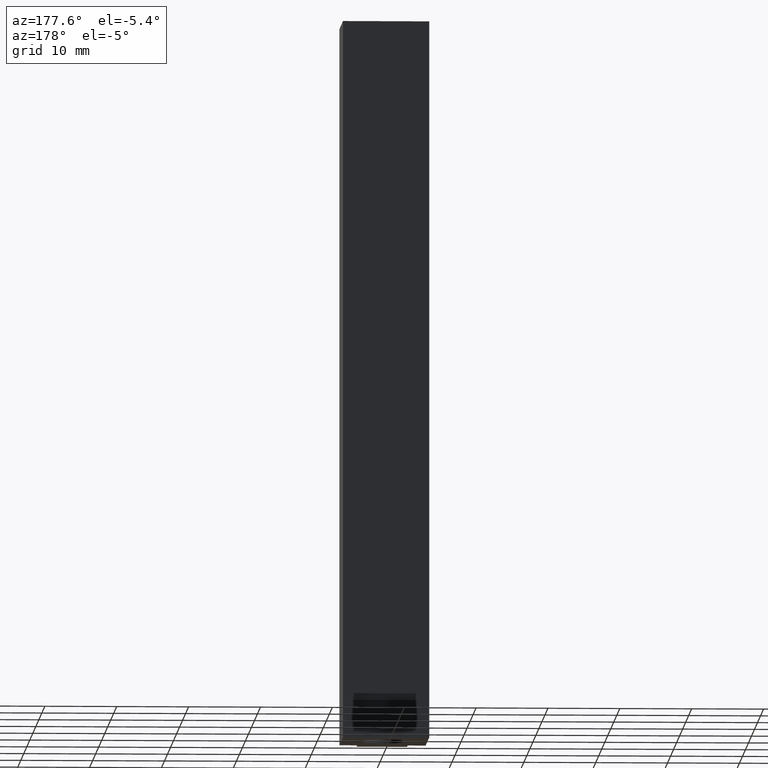
[diagram: clean part render]
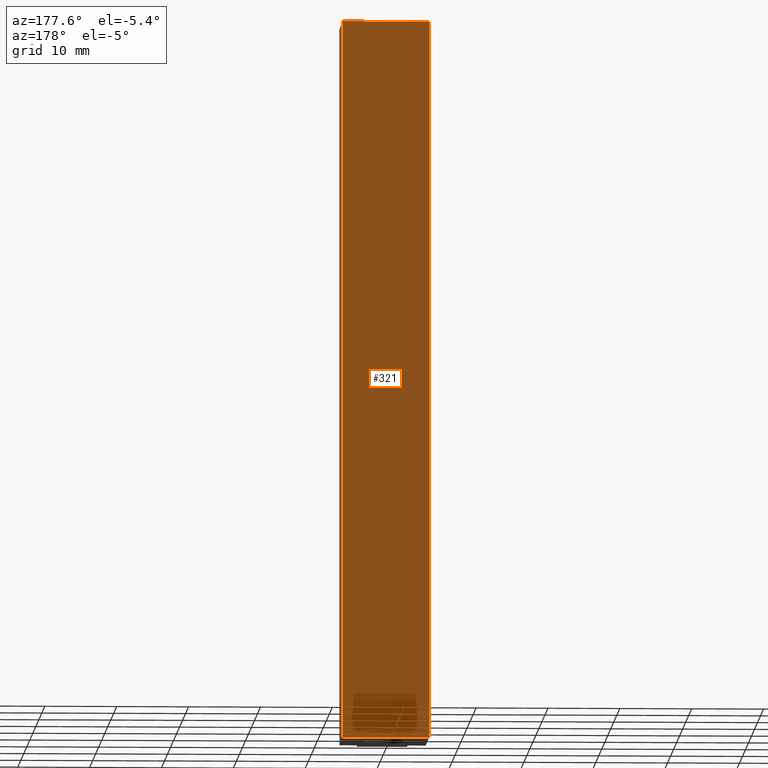
[diagram: same view with one face highlighted and labeled with its STEP entity id]
A machine part, auxiliary view. The second image highlights one B-rep face of the part: STEP entity #321.
In plain terms, the highlighted planar face has unit normal (0, 1, 0).
Its self-contained STEP definition (entity closure, byte-faithful):
#103=CARTESIAN_POINT('',(6.000000000000001,-2.220446E-015,-50.0));
#104=VERTEX_POINT('',#103);
#151=CARTESIAN_POINT('',(-6.000000000000001,-2.220446E-015,-50.0));
#152=VERTEX_POINT('',#151);
#159=CARTESIAN_POINT('',(6.000000000000001,-2.220446E-015,-50.0));
#160=DIRECTION('',(-1.0,0.0,0.0));
#161=VECTOR('',#160,12.000000000000002);
#162=LINE('',#159,#161);
#163=EDGE_CURVE('',#104,#152,#162,.T.);
#279=CARTESIAN_POINT('',(-6.000000000000001,-2.220446E-015,50.0));
#280=VERTEX_POINT('',#279);
#287=CARTESIAN_POINT('',(-6.000000000000001,-2.220446E-015,50.0));
#288=DIRECTION('',(0.0,0.0,-1.0));
#289=VECTOR('',#288,100.0);
#290=LINE('',#287,#289);
#291=EDGE_CURVE('',#280,#152,#290,.T.);
#298=CARTESIAN_POINT('',(-6.000000000000001,-2.220446E-015,0.0));
#299=DIRECTION('',(0.0,1.0,0.0));
#300=DIRECTION('',(0.0,0.0,1.0));
#301=AXIS2_PLACEMENT_3D('',#298,#299,#300);
#302=PLANE('',#301);
#303=CARTESIAN_POINT('',(6.000000000000001,-2.220446E-015,50.0));
#304=VERTEX_POINT('',#303);
#305=CARTESIAN_POINT('',(-6.000000000000001,-2.220446E-015,50.0));
#306=DIRECTION('',(1.0,0.0,0.0));
#307=VECTOR('',#306,12.000000000000002);
#308=LINE('',#305,#307);
#309=EDGE_CURVE('',#280,#304,#308,.T.);
#310=ORIENTED_EDGE('',*,*,#309,.T.);
#311=CARTESIAN_POINT('',(6.000000000000001,-2.220446E-015,50.0));
#312=DIRECTION('',(0.0,0.0,-1.0));
#313=VECTOR('',#312,100.0);
#314=LINE('',#311,#313);
#315=EDGE_CURVE('',#304,#104,#314,.T.);
#316=ORIENTED_EDGE('',*,*,#315,.T.);
#317=ORIENTED_EDGE('',*,*,#163,.T.);
#318=ORIENTED_EDGE('',*,*,#291,.F.);
#319=EDGE_LOOP('',(#310,#316,#317,#318));
#320=FACE_OUTER_BOUND('',#319,.T.);
#321=ADVANCED_FACE('',(#320),#302,.T.);